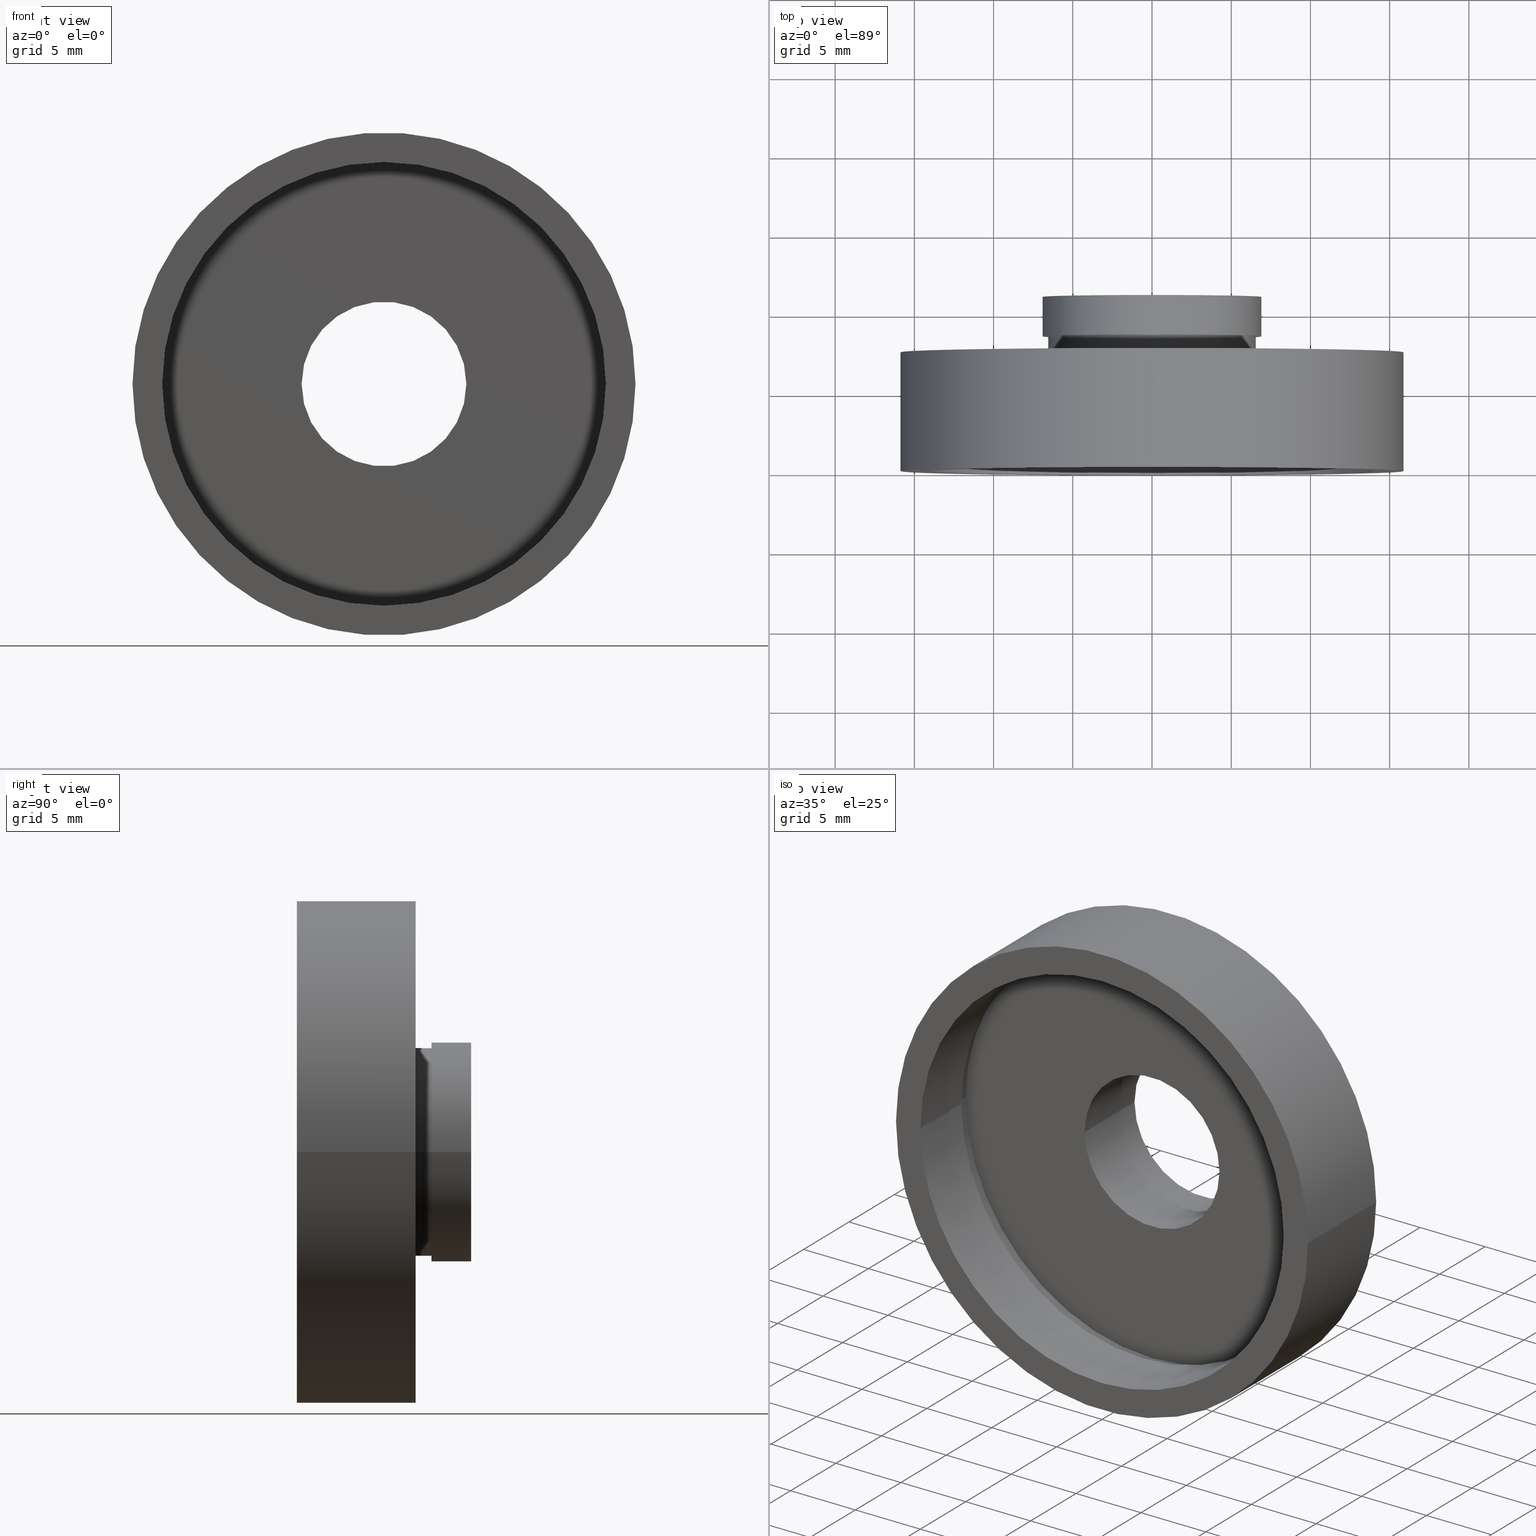
[diagram: canonical four-view strip — front | top / right | iso, engineering-drawing reading convention]
A machine part, canonical four-view strip (front | top / right | iso — engineering-drawing reading convention). The complete STEP part file that produces these views, byte-faithful:
ISO-10303-21;
HEADER;
FILE_DESCRIPTION (( 'STEP AP214' ),
    '1' );
FILE_NAME ('5041130.STEP',
    '2019-10-10T01:48:34',
    ( '' ),
    ( '' ),
    'SwSTEP 2.0',
    'SolidWorks 2016',
    '' );
FILE_SCHEMA (( 'AUTOMOTIVE_DESIGN' ));
ENDSEC;

DATA;
#1 = SURFACE_SIDE_STYLE ('',( #423 ) ) ;
#2 = DIRECTION ( 'NONE',  ( -1.000000000000000000, -1.668003342285391300E-016, 0.0000000000000000000 ) ) ;
#3 = CIRCLE ( 'NONE', #43, 6.900000000000000400 ) ;
#4 = CARTESIAN_POINT ( 'NONE',  ( 7.208293393765501500E-016, 10.99999999999999600, 0.0000000000000000000 ) ) ;
#5 = PRESENTATION_LAYER_ASSIGNMENT (  '', '', ( #562 ) ) ;
#6 = VECTOR ( 'NONE', #243, 1000.000000000000000 ) ;
#7 = ORIENTED_EDGE ( 'NONE', *, *, #348, .F. ) ;
#8 = CARTESIAN_POINT ( 'NONE',  ( 0.0000000000000000000, 16.88601823708207700, 0.0000000000000000000 ) ) ;
#9 = DIRECTION ( 'NONE',  ( -1.224646799147351000E-016, 1.000000000000000000, -0.0000000000000000000 ) ) ;
#10 = EDGE_LOOP ( 'NONE', ( #7, #543, #183, #410 ) ) ;
#11 = MECHANICAL_DESIGN_GEOMETRIC_PRESENTATION_REPRESENTATION (  '', ( #420 ), #207 ) ;
#12 = CARTESIAN_POINT ( 'NONE',  ( 14.35000000000000100, 5.500000000000000000, 1.757368156776452000E-015 ) ) ;
#13 = CYLINDRICAL_SURFACE ( 'NONE', #132, 14.35000000000000000 ) ;
#14 = COLOUR_RGB ( '',1.000000000000000000, 1.000000000000000000, 1.000000000000000000 ) ;
#15 = ORIENTED_EDGE ( 'NONE', *, *, #315, .T. ) ;
#16 = CARTESIAN_POINT ( 'NONE',  ( -5.200000000000000200, 11.00000000000000000, 0.0000000000000000000 ) ) ;
#17 = EDGE_CURVE ( 'NONE', #591, #440, #415, .T. ) ;
#18 = PRODUCT_DEFINITION ( 'δ֪', '', #465, #283 ) ;
#19 = CARTESIAN_POINT ( 'NONE',  ( 0.0000000000000000000, 16.88601823708207700, 0.0000000000000000000 ) ) ;
#20 = CIRCLE ( 'NONE', #515, 14.35000000000000000 ) ;
#21 = DIRECTION ( 'NONE',  ( -1.224646799147351000E-016, 1.000000000000000000, -0.0000000000000000000 ) ) ;
#22 = DIRECTION ( 'NONE',  ( -1.224646799147351000E-016, 1.000000000000000000, -0.0000000000000000000 ) ) ;
#23 = DIRECTION ( 'NONE',  ( -1.000000000000000000, -1.224646799147350700E-016, 0.0000000000000000000 ) ) ;
#24 = DIRECTION ( 'NONE',  ( 1.224646799147351000E-016, -1.000000000000000000, 0.0000000000000000000 ) ) ;
#25 = EDGE_CURVE ( 'NONE', #208, #256, #287, .T. ) ;
#26 = ORIENTED_EDGE ( 'NONE', *, *, #322, .T. ) ;
#27 = EDGE_LOOP ( 'NONE', ( #603, #48 ) ) ;
#28 = DIRECTION ( 'NONE',  ( -1.000000000000000000, -1.668003342285391300E-016, 0.0000000000000000000 ) ) ;
#29 = DIRECTION ( 'NONE',  ( -1.000000000000000000, -1.208866533781747200E-016, 0.0000000000000000000 ) ) ;
#30 = ADVANCED_FACE ( 'NONE', ( #301 ), #120, .F. ) ;
#31 = FACE_OUTER_BOUND ( 'NONE', #416, .T. ) ;
#32 = UNCERTAINTY_MEASURE_WITH_UNIT (LENGTH_MEASURE( 1.000000000000000100E-005 ), #52, 'distance_accuracy_value', 'NONE');
#33 =( GEOMETRIC_REPRESENTATION_CONTEXT ( 3 ) GLOBAL_UNCERTAINTY_ASSIGNED_CONTEXT ( ( #376 ) ) GLOBAL_UNIT_ASSIGNED_CONTEXT ( ( #143, #194, #587 ) ) REPRESENTATION_CONTEXT ( 'NONE', 'WORKASPACE' ) );
#34 = ORIENTED_EDGE ( 'NONE', *, *, #545, .T. ) ;
#35 = CARTESIAN_POINT ( 'NONE',  ( 15.87500000000000000, 16.88601823708208000, 1.944126793646423200E-015 ) ) ;
#36 =( LENGTH_UNIT ( ) NAMED_UNIT ( * ) SI_UNIT ( .MILLI., .METRE. ) );
#37 =( NAMED_UNIT ( * ) PLANE_ANGLE_UNIT ( ) SI_UNIT ( $, .RADIAN. ) );
#38 = EDGE_LOOP ( 'NONE', ( #249, #512 ) ) ;
#39 = MANIFOLD_SOLID_BREP ( '��ת1', #616 ) ;
#40 = PRESENTATION_STYLE_ASSIGNMENT (( #300 ) ) ;
#41 = DIRECTION ( 'NONE',  ( -1.000000000000000000, -1.208866533781747200E-016, 0.0000000000000000000 ) ) ;
#42 = STYLED_ITEM ( 'NONE', ( #333 ), #39 ) ;
#43 = AXIS2_PLACEMENT_3D ( 'NONE', #505, #215, #160 ) ;
#44 = CYLINDRICAL_SURFACE ( 'NONE', #229, 6.549999999999998900 ) ;
#45 = VECTOR ( 'NONE', #124, 1000.000000000000000 ) ;
#46 = DIRECTION ( 'NONE',  ( -1.000000000000000000, -2.185478394931410600E-016, 0.0000000000000000000 ) ) ;
#47 = CARTESIAN_POINT ( 'NONE',  ( 0.0000000000000000000, 16.88601823708207700, 0.0000000000000000000 ) ) ;
#48 = ORIENTED_EDGE ( 'NONE', *, *, #167, .T. ) ;
#49 = FILL_AREA_STYLE_COLOUR ( '', #485 ) ;
#50 = FILL_AREA_STYLE ('',( #576 ) ) ;
#51 = CIRCLE ( 'NONE', #312, 6.549999999999999800 ) ;
#52 =( LENGTH_UNIT ( ) NAMED_UNIT ( * ) SI_UNIT ( .MILLI., .METRE. ) );
#53 = EDGE_LOOP ( 'NONE', ( #105, #65 ) ) ;
#54 =( NAMED_UNIT ( * ) SI_UNIT ( $, .STERADIAN. ) SOLID_ANGLE_UNIT ( ) );
#55 = CARTESIAN_POINT ( 'NONE',  ( -14.34999999999999800, 5.499999999999996400, 0.0000000000000000000 ) ) ;
#56 = VERTEX_POINT ( 'NONE', #145 ) ;
#57 = EDGE_CURVE ( 'NONE', #506, #360, #217, .T. ) ;
#58 = FILL_AREA_STYLE ('',( #447 ) ) ;
#59 = APPLICATION_CONTEXT ( 'automotive_design' ) ;
#60 = FACE_OUTER_BOUND ( 'NONE', #10, .T. ) ;
#61 = PRESENTATION_STYLE_ASSIGNMENT (( #69 ) ) ;
#62 = FACE_OUTER_BOUND ( 'NONE', #232, .T. ) ;
#63 = CARTESIAN_POINT ( 'NONE',  ( 0.0000000000000000000, 16.88601823708207700, 0.0000000000000000000 ) ) ;
#64 = AXIS2_PLACEMENT_3D ( 'NONE', #77, #223, #28 ) ;
#65 = ORIENTED_EDGE ( 'NONE', *, *, #579, .F. ) ;
#66 = VERTEX_POINT ( 'NONE', #544 ) ;
#67 = DIRECTION ( 'NONE',  ( -1.000000000000000000, -2.185478394931410600E-016, 0.0000000000000000000 ) ) ;
#68 = AXIS2_PLACEMENT_3D ( 'NONE', #397, #290, #578 ) ;
#69 = SURFACE_STYLE_USAGE ( .BOTH. , #114 ) ;
#70 = CIRCLE ( 'NONE', #162, 14.35000000000000000 ) ;
#71 = CIRCLE ( 'NONE', #225, 14.00000000000000000 ) ;
#72 = AXIS2_PLACEMENT_3D ( 'NONE', #19, #22, #596 ) ;
#73 = ORIENTED_EDGE ( 'NONE', *, *, #322, .F. ) ;
#74 = CARTESIAN_POINT ( 'NONE',  ( -13.99999999999999800, 4.499999999999997300, 0.0000000000000000000 ) ) ;
#75 = ORIENTED_EDGE ( 'NONE', *, *, #274, .F. ) ;
#76 = CARTESIAN_POINT ( 'NONE',  ( 6.549999999999998900, 16.88601823708207700, 8.021436534415162300E-016 ) ) ;
#77 = CARTESIAN_POINT ( 'NONE',  ( 1.394385078907592800E-015, 5.500000000000000000, 0.0000000000000000000 ) ) ;
#78 = ADVANCED_FACE ( 'NONE', ( #564 ), #191, .T. ) ;
#79 = VECTOR ( 'NONE', #373, 1000.000000000000000 ) ;
#80 = DIRECTION ( 'NONE',  ( -1.224646799147351000E-016, 1.000000000000000000, -0.0000000000000000000 ) ) ;
#81 =( GEOMETRIC_REPRESENTATION_CONTEXT ( 3 ) GLOBAL_UNCERTAINTY_ASSIGNED_CONTEXT ( ( #32 ) ) GLOBAL_UNIT_ASSIGNED_CONTEXT ( ( #52, #258, #253 ) ) REPRESENTATION_CONTEXT ( 'NONE', 'WORKASPACE' ) );
#82 = ORIENTED_EDGE ( 'NONE', *, *, #593, .T. ) ;
#83 = ADVANCED_FACE ( 'NONE', ( #254, #403 ), #446, .F. ) ;
#84 = AXIS2_PLACEMENT_3D ( 'NONE', #363, #509, #219 ) ;
#85 = DIRECTION ( 'NONE',  ( 1.224646799147351000E-016, -1.000000000000000000, 0.0000000000000000000 ) ) ;
#86 = SURFACE_STYLE_USAGE ( .BOTH. , #471 ) ;
#87 = DIRECTION ( 'NONE',  ( -1.224646799147351000E-016, 1.000000000000000000, -0.0000000000000000000 ) ) ;
#88 = LINE ( 'NONE', #316, #45 ) ;
#89 = VERTEX_POINT ( 'NONE', #297 ) ;
#90 = CARTESIAN_POINT ( 'NONE',  ( 0.0000000000000000000, 16.88601823708207700, 0.0000000000000000000 ) ) ;
#91 = AXIS2_PLACEMENT_3D ( 'NONE', #345, #391, #99 ) ;
#92 =( GEOMETRIC_REPRESENTATION_CONTEXT ( 3 ) GLOBAL_UNCERTAINTY_ASSIGNED_CONTEXT ( ( #443 ) ) GLOBAL_UNIT_ASSIGNED_CONTEXT ( ( #436, #486, #54 ) ) REPRESENTATION_CONTEXT ( 'NONE', 'WORKASPACE' ) );
#93 = SURFACE_SIDE_STYLE ('',( #298 ) ) ;
#94 = SURFACE_STYLE_FILL_AREA ( #212 ) ;
#95 = ORIENTED_EDGE ( 'NONE', *, *, #460, .F. ) ;
#96 = CARTESIAN_POINT ( 'NONE',  ( -15.87500000000000000, 7.499999999999996400, 0.0000000000000000000 ) ) ;
#97 = ORIENTED_EDGE ( 'NONE', *, *, #172, .F. ) ;
#98 = STYLED_ITEM ( 'NONE', ( #606 ), #467 ) ;
#99 = DIRECTION ( 'NONE',  ( -1.000000000000000000, -1.239088197126290800E-016, 0.0000000000000000000 ) ) ;
#100 = DIRECTION ( 'NONE',  ( -1.224646799147351000E-016, 1.000000000000000000, -0.0000000000000000000 ) ) ;
#101 = CARTESIAN_POINT ( 'NONE',  ( 14.00000000000000200, 1.714505518806291500E-015, 1.714505518806294600E-015 ) ) ;
#102 = PRESENTATION_LAYER_ASSIGNMENT (  '', '', ( #98 ) ) ;
#103 = LINE ( 'NONE', #76, #601 ) ;
#104 = DIRECTION ( 'NONE',  ( -1.000000000000000000, 0.0000000000000000000, 0.0000000000000000000 ) ) ;
#105 = ORIENTED_EDGE ( 'NONE', *, *, #234, .F. ) ;
#106 = ORIENTED_EDGE ( 'NONE', *, *, #214, .F. ) ;
#107 = EDGE_CURVE ( 'NONE', #440, #591, #270, .T. ) ;
#108 = ORIENTED_EDGE ( 'NONE', *, *, #482, .F. ) ;
#109 = DIRECTION ( 'NONE',  ( -1.224646799147351000E-016, 1.000000000000000000, 0.0000000000000000000 ) ) ;
#110 = DIRECTION ( 'NONE',  ( 0.0000000000000000000, 0.0000000000000000000, 1.000000000000000000 ) ) ;
#111 =( NAMED_UNIT ( * ) SI_UNIT ( $, .STERADIAN. ) SOLID_ANGLE_UNIT ( ) );
#112 = FACE_OUTER_BOUND ( 'NONE', #326, .T. ) ;
#113 = ORIENTED_EDGE ( 'NONE', *, *, #199, .F. ) ;
#114 = SURFACE_SIDE_STYLE ('',( #94 ) ) ;
#115 =( GEOMETRIC_REPRESENTATION_CONTEXT ( 3 ) GLOBAL_UNCERTAINTY_ASSIGNED_CONTEXT ( ( #131 ) ) GLOBAL_UNIT_ASSIGNED_CONTEXT ( ( #404, #155, #111 ) ) REPRESENTATION_CONTEXT ( 'NONE', 'WORKASPACE' ) );
#116 = MECHANICAL_DESIGN_GEOMETRIC_PRESENTATION_REPRESENTATION (  '', ( #562 ), #33 ) ;
#117 = DIRECTION ( 'NONE',  ( -1.224646799147351000E-016, 1.000000000000000000, -0.0000000000000000000 ) ) ;
#118 = DIRECTION ( 'NONE',  ( -1.000000000000000000, -1.092739197465705300E-016, 0.0000000000000000000 ) ) ;
#119 = FACE_BOUND ( 'NONE', #53, .T. ) ;
#120 = CYLINDRICAL_SURFACE ( 'NONE', #572, 14.35000000000000000 ) ;
#121 =( LENGTH_UNIT ( ) NAMED_UNIT ( * ) SI_UNIT ( .MILLI., .METRE. ) );
#122 = VERTEX_POINT ( 'NONE', #55 ) ;
#123 = ORIENTED_EDGE ( 'NONE', *, *, #602, .F. ) ;
#124 = DIRECTION ( 'NONE',  ( -1.224646799147351000E-016, 1.000000000000000000, -0.0000000000000000000 ) ) ;
#125 = UNCERTAINTY_MEASURE_WITH_UNIT (LENGTH_MEASURE( 1.000000000000000100E-005 ), #121, 'distance_accuracy_value', 'NONE');
#126 = MECHANICAL_DESIGN_GEOMETRIC_PRESENTATION_REPRESENTATION (  '', ( #42 ), #81 ) ;
#127 = CYLINDRICAL_SURFACE ( 'NONE', #421, 15.87500000000000000 ) ;
#128 = AXIS2_PLACEMENT_3D ( 'NONE', #305, #599, #409 ) ;
#129 = VERTEX_POINT ( 'NONE', #12 ) ;
#130 = DIRECTION ( 'NONE',  ( -1.224646799147351000E-016, 1.000000000000000000, -0.0000000000000000000 ) ) ;
#131 = UNCERTAINTY_MEASURE_WITH_UNIT (LENGTH_MEASURE( 1.000000000000000100E-005 ), #404, 'distance_accuracy_value', 'NONE');
#132 = AXIS2_PLACEMENT_3D ( 'NONE', #90, #138, #428 ) ;
#133 = SURFACE_STYLE_FILL_AREA ( #278 ) ;
#134 = PRESENTATION_LAYER_ASSIGNMENT (  '', '', ( #535 ) ) ;
#135 = ORIENTED_EDGE ( 'NONE', *, *, #368, .F. ) ;
#136 = DIRECTION ( 'NONE',  ( -1.000000000000000000, 0.0000000000000000000, 0.0000000000000000000 ) ) ;
#137 = EDGE_CURVE ( 'NONE', #360, #387, #141, .T. ) ;
#138 = DIRECTION ( 'NONE',  ( -1.224646799147351000E-016, 1.000000000000000000, -0.0000000000000000000 ) ) ;
#139 = DIRECTION ( 'NONE',  ( -1.224646799147351000E-016, 1.000000000000000000, -0.0000000000000000000 ) ) ;
#140 = FACE_OUTER_BOUND ( 'NONE', #200, .T. ) ;
#141 = CIRCLE ( 'NONE', #474, 6.900000000000001200 ) ;
#142 = DIRECTION ( 'NONE',  ( -1.224646799147351000E-016, 1.000000000000000000, -0.0000000000000000000 ) ) ;
#143 =( LENGTH_UNIT ( ) NAMED_UNIT ( * ) SI_UNIT ( .MILLI., .METRE. ) );
#144 = AXIS2_PLACEMENT_3D ( 'NONE', #353, #198, #494 ) ;
#145 = CARTESIAN_POINT ( 'NONE',  ( -13.99999999999999800, -1.714505518806291500E-015, 0.0000000000000000000 ) ) ;
#146 = AXIS2_PLACEMENT_3D ( 'NONE', #518, #466, #175 ) ;
#147 = SURFACE_STYLE_USAGE ( .BOTH. , #93 ) ;
#148 = VECTOR ( 'NONE', #130, 1000.000000000000000 ) ;
#149 = ORIENTED_EDGE ( 'NONE', *, *, #619, .F. ) ;
#150 = ORIENTED_EDGE ( 'NONE', *, *, #602, .T. ) ;
#151 = DIRECTION ( 'NONE',  ( -1.000000000000000000, 0.0000000000000000000, 0.0000000000000000000 ) ) ;
#152 = SURFACE_SIDE_STYLE ('',( #262 ) ) ;
#153 = CYLINDRICAL_SURFACE ( 'NONE', #501, 15.87500000000000000 ) ;
#154 = PRODUCT_CONTEXT ( 'NONE', #59, 'mechanical' ) ;
#155 =( NAMED_UNIT ( * ) PLANE_ANGLE_UNIT ( ) SI_UNIT ( $, .RADIAN. ) );
#156 = EDGE_CURVE ( 'NONE', #344, #622, #439, .T. ) ;
#157 = ORIENTED_EDGE ( 'NONE', *, *, #444, .T. ) ;
#158 = PRESENTATION_LAYER_ASSIGNMENT (  '', '', ( #291 ) ) ;
#159 = DIRECTION ( 'NONE',  ( -1.000000000000000000, -1.239088197126290800E-016, 0.0000000000000000000 ) ) ;
#160 = DIRECTION ( 'NONE',  ( -1.000000000000000000, 0.0000000000000000000, 0.0000000000000000000 ) ) ;
#161 =( NAMED_UNIT ( * ) PLANE_ANGLE_UNIT ( ) SI_UNIT ( $, .RADIAN. ) );
#162 = AXIS2_PLACEMENT_3D ( 'NONE', #388, #196, #41 ) ;
#163 = FACE_OUTER_BOUND ( 'NONE', #582, .T. ) ;
#164 = VERTEX_POINT ( 'NONE', #101 ) ;
#165 = AXIS2_PLACEMENT_3D ( 'NONE', #226, #85, #422 ) ;
#166 = CARTESIAN_POINT ( 'NONE',  ( 1.026991039163387500E-015, 8.500000000000000000, 0.0000000000000000000 ) ) ;
#167 = EDGE_CURVE ( 'NONE', #66, #520, #526, .T. ) ;
#168 = VECTOR ( 'NONE', #479, 1000.000000000000000 ) ;
#169 = CARTESIAN_POINT ( 'NONE',  ( 1.394385078907593000E-015, 5.499999999999998200, 0.0000000000000000000 ) ) ;
#170 = ORIENTED_EDGE ( 'NONE', *, *, #57, .F. ) ;
#171 = CARTESIAN_POINT ( 'NONE',  ( 6.550000000000000700, 7.499999999999999100, 0.0000000000000000000 ) ) ;
#172 = EDGE_CURVE ( 'NONE', #263, #250, #393, .T. ) ;
#173 = LINE ( 'NONE', #605, #246 ) ;
#174 = AXIS2_PLACEMENT_3D ( 'NONE', #573, #330, #386 ) ;
#175 = DIRECTION ( 'NONE',  ( -1.000000000000000000, -1.224646799147351000E-016, 0.0000000000000000000 ) ) ;
#176 = ADVANCED_FACE ( 'NONE', ( #62 ), #317, .F. ) ;
#177 = EDGE_LOOP ( 'NONE', ( #319, #536, #604, #211 ) ) ;
#178 = EDGE_CURVE ( 'NONE', #381, #426, #295, .T. ) ;
#179 = ADVANCED_FACE ( 'NONE', ( #457, #163 ), #455, .F. ) ;
#180 = DIRECTION ( 'NONE',  ( -1.224646799147351000E-016, 1.000000000000000000, -0.0000000000000000000 ) ) ;
#181 = FACE_OUTER_BOUND ( 'NONE', #177, .T. ) ;
#182 = CARTESIAN_POINT ( 'NONE',  ( 15.87500000000000000, -2.166671187435640300E-031, 0.0000000000000000000 ) ) ;
#183 = ORIENTED_EDGE ( 'NONE', *, *, #279, .T. ) ;
#184 = DIRECTION ( 'NONE',  ( -1.000000000000000000, -2.417733067563494300E-016, 0.0000000000000000000 ) ) ;
#185 = EDGE_CURVE ( 'NONE', #89, #367, #189, .T. ) ;
#186 = MECHANICAL_DESIGN_GEOMETRIC_PRESENTATION_REPRESENTATION (  '', ( #535 ), #358 ) ;
#187 = DIRECTION ( 'NONE',  ( -1.000000000000000000, -1.324216393875425300E-016, 0.0000000000000000000 ) ) ;
#188 = FACE_OUTER_BOUND ( 'NONE', #289, .T. ) ;
#189 = CIRCLE ( 'NONE', #470, 6.549999999999998900 ) ;
#190 = SURFACE_STYLE_USAGE ( .BOTH. , #1 ) ;
#191 = CYLINDRICAL_SURFACE ( 'NONE', #144, 6.900000000000001200 ) ;
#192 = ORIENTED_EDGE ( 'NONE', *, *, #334, .F. ) ;
#193 = ORIENTED_EDGE ( 'NONE', *, *, #274, .T. ) ;
#194 =( NAMED_UNIT ( * ) PLANE_ANGLE_UNIT ( ) SI_UNIT ( $, .RADIAN. ) );
#195 =( GEOMETRIC_REPRESENTATION_CONTEXT ( 3 ) GLOBAL_UNCERTAINTY_ASSIGNED_CONTEXT ( ( #552 ) ) GLOBAL_UNIT_ASSIGNED_CONTEXT ( ( #36, #37, #522 ) ) REPRESENTATION_CONTEXT ( 'NONE', 'WORKASPACE' ) );
#196 = DIRECTION ( 'NONE',  ( -1.224646799147351000E-016, 1.000000000000000000, -0.0000000000000000000 ) ) ;
#197 = FACE_OUTER_BOUND ( 'NONE', #418, .T. ) ;
#198 = DIRECTION ( 'NONE',  ( -1.224646799147351000E-016, 1.000000000000000000, -0.0000000000000000000 ) ) ;
#199 = EDGE_CURVE ( 'NONE', #506, #304, #3, .T. ) ;
#200 = EDGE_LOOP ( 'NONE', ( #575, #597 ) ) ;
#201 = EDGE_LOOP ( 'NONE', ( #277, #113 ) ) ;
#202 = DIRECTION ( 'NONE',  ( -1.224646799147351000E-016, 1.000000000000000000, -0.0000000000000000000 ) ) ;
#203 = PRESENTATION_STYLE_ASSIGNMENT (( #147 ) ) ;
#204 = DIRECTION ( 'NONE',  ( 1.000000000000000000, 0.0000000000000000000, 0.0000000000000000000 ) ) ;
#205 = LINE ( 'NONE', #35, #580 ) ;
#206 = DIRECTION ( 'NONE',  ( -1.224646799147351000E-016, 1.000000000000000000, -0.0000000000000000000 ) ) ;
#207 =( GEOMETRIC_REPRESENTATION_CONTEXT ( 3 ) GLOBAL_UNCERTAINTY_ASSIGNED_CONTEXT ( ( #125 ) ) GLOBAL_UNIT_ASSIGNED_CONTEXT ( ( #121, #161, #362 ) ) REPRESENTATION_CONTEXT ( 'NONE', 'WORKASPACE' ) );
#208 = VERTEX_POINT ( 'NONE', #314 ) ;
#209 = APPLICATION_CONTEXT ( 'automotive_design' ) ;
#210 = AXIS2_PLACEMENT_3D ( 'NONE', #169, #323, #370 ) ;
#211 = ORIENTED_EDGE ( 'NONE', *, *, #247, .F. ) ;
#212 = FILL_AREA_STYLE ('',( #413 ) ) ;
#213 = DIRECTION ( 'NONE',  ( -1.224646799147351000E-016, 1.000000000000000000, -0.0000000000000000000 ) ) ;
#214 = EDGE_CURVE ( 'NONE', #367, #89, #532, .T. ) ;
#215 = DIRECTION ( 'NONE',  ( -1.224646799147351000E-016, 1.000000000000000000, -0.0000000000000000000 ) ) ;
#216 = LINE ( 'NONE', #469, #331 ) ;
#217 = LINE ( 'NONE', #489, #590 ) ;
#218 = VERTEX_POINT ( 'NONE', #259 ) ;
#219 = DIRECTION ( 'NONE',  ( -1.000000000000000000, 0.0000000000000000000, 0.0000000000000000000 ) ) ;
#220 = ORIENTED_EDGE ( 'NONE', *, *, #432, .T. ) ;
#221 = MECHANICAL_DESIGN_GEOMETRIC_PRESENTATION_REPRESENTATION (  '', ( #291 ), #407 ) ;
#222 = ORIENTED_EDGE ( 'NONE', *, *, #450, .T. ) ;
#223 = DIRECTION ( 'NONE',  ( -1.224646799147351000E-016, 1.000000000000000000, -0.0000000000000000000 ) ) ;
#224 = ADVANCED_FACE ( 'NONE', ( #181 ), #127, .T. ) ;
#225 = AXIS2_PLACEMENT_3D ( 'NONE', #519, #384, #377 ) ;
#226 = CARTESIAN_POINT ( 'NONE',  ( 5.200000000000001100, 11.00000000000000000, 0.0000000000000000000 ) ) ;
#227 = FILL_AREA_STYLE_COLOUR ( '', #620 ) ;
#228 = FACE_BOUND ( 'NONE', #352, .T. ) ;
#229 = AXIS2_PLACEMENT_3D ( 'NONE', #524, #142, #329 ) ;
#230 = VERTEX_POINT ( 'NONE', #547 ) ;
#231 =( NAMED_UNIT ( * ) PLANE_ANGLE_UNIT ( ) SI_UNIT ( $, .RADIAN. ) );
#232 = EDGE_LOOP ( 'NONE', ( #149, #335, #328, #584 ) ) ;
#233 = DIRECTION ( 'NONE',  ( -1.224646799147351000E-016, 1.000000000000000000, -0.0000000000000000000 ) ) ;
#234 = EDGE_CURVE ( 'NONE', #256, #230, #495, .T. ) ;
#235 = PLANE ( 'NONE',  #600 ) ;
#236 = DIRECTION ( 'NONE',  ( -1.224646799147351000E-016, 1.000000000000000000, -0.0000000000000000000 ) ) ;
#237 = CIRCLE ( 'NONE', #568, 15.87499999999999600 ) ;
#238 = EDGE_LOOP ( 'NONE', ( #170, #371, #527, #434 ) ) ;
#239 = FILL_AREA_STYLE_COLOUR ( '', #349 ) ;
#240 = EDGE_LOOP ( 'NONE', ( #496, #468, #382, #585 ) ) ;
#241 = CARTESIAN_POINT ( 'NONE',  ( 15.87500000000000000, -1.525320158307194900E-015, 1.944126793646423200E-015 ) ) ;
#242 = AXIS2_PLACEMENT_3D ( 'NONE', #498, #213, #366 ) ;
#243 = DIRECTION ( 'NONE',  ( -1.224646799147351000E-016, 1.000000000000000000, -0.0000000000000000000 ) ) ;
#244 = AXIS2_PLACEMENT_3D ( 'NONE', #171, #24, #419 ) ;
#245 = CARTESIAN_POINT ( 'NONE',  ( 7.208293393765501500E-016, 10.99999999999999600, 0.0000000000000000000 ) ) ;
#246 = VECTOR ( 'NONE', #425, 1000.000000000000000 ) ;
#247 = EDGE_CURVE ( 'NONE', #344, #520, #88, .T. ) ;
#248 = DIRECTION ( 'NONE',  ( -1.224646799147351000E-016, 1.000000000000000000, -0.0000000000000000000 ) ) ;
#249 = ORIENTED_EDGE ( 'NONE', *, *, #107, .F. ) ;
#250 = VERTEX_POINT ( 'NONE', #359 ) ;
#251 =( NAMED_UNIT ( * ) PLANE_ANGLE_UNIT ( ) SI_UNIT ( $, .RADIAN. ) );
#252 = SURFACE_STYLE_USAGE ( .BOTH. , #152 ) ;
#253 =( NAMED_UNIT ( * ) SI_UNIT ( $, .STERADIAN. ) SOLID_ANGLE_UNIT ( ) );
#254 = FACE_OUTER_BOUND ( 'NONE', #201, .T. ) ;
#255 = AXIS2_PLACEMENT_3D ( 'NONE', #538, #398, #541 ) ;
#256 = VERTEX_POINT ( 'NONE', #16 ) ;
#257 = SURFACE_SIDE_STYLE ('',( #478 ) ) ;
#258 =( NAMED_UNIT ( * ) PLANE_ANGLE_UNIT ( ) SI_UNIT ( $, .RADIAN. ) );
#259 = CARTESIAN_POINT ( 'NONE',  ( 5.200000000000001100, 5.500000000000000900, 6.368163355566236400E-016 ) ) ;
#260 = AXIS2_PLACEMENT_3D ( 'NONE', #442, #586, #2 ) ;
#261 = VECTOR ( 'NONE', #236, 1000.000000000000000 ) ;
#262 = SURFACE_STYLE_FILL_AREA ( #58 ) ;
#263 = VERTEX_POINT ( 'NONE', #374 ) ;
#264 = EDGE_LOOP ( 'NONE', ( #192, #75, #303, #565 ) ) ;
#265 = DIRECTION ( 'NONE',  ( -1.224646799147351000E-016, 1.000000000000000000, -0.0000000000000000000 ) ) ;
#266 = DIRECTION ( 'NONE',  ( -1.000000000000000000, -1.208866533781747200E-016, 0.0000000000000000000 ) ) ;
#267 = AXIS2_PLACEMENT_3D ( 'NONE', #396, #491, #159 ) ;
#268 = FACE_OUTER_BOUND ( 'NONE', #240, .T. ) ;
#269 = CARTESIAN_POINT ( 'NONE',  ( -6.549999999999998000, 8.500000000000000000, 0.0000000000000000000 ) ) ;
#270 = CIRCLE ( 'NONE', #267, 14.00000000000000000 ) ;
#271 = ORIENTED_EDGE ( 'NONE', *, *, #432, .F. ) ;
#272 = PLANE ( 'NONE',  #244 ) ;
#273 = CARTESIAN_POINT ( 'NONE',  ( 6.550000000000000700, 7.500000000000000900, 8.021436534415164200E-016 ) ) ;
#274 = EDGE_CURVE ( 'NONE', #208, #218, #549, .T. ) ;
#275 = AXIS2_PLACEMENT_3D ( 'NONE', #617, #233, #136 ) ;
#276 = FILL_AREA_STYLE_COLOUR ( '', #357 ) ;
#277 = ORIENTED_EDGE ( 'NONE', *, *, #507, .F. ) ;
#278 = FILL_AREA_STYLE ('',( #227 ) ) ;
#279 = EDGE_CURVE ( 'NONE', #426, #367, #503, .T. ) ;
#280 = PRODUCT ( '5041130', '5041130', '', ( #154 ) ) ;
#281 = CARTESIAN_POINT ( 'NONE',  ( 1.026991039163387500E-015, 8.500000000000000000, 0.0000000000000000000 ) ) ;
#282 = ADVANCED_FACE ( 'NONE', ( #487, #378 ), #272, .F. ) ;
#283 = PRODUCT_DEFINITION_CONTEXT ( 'detailed design', #209, 'design' ) ;
#284 = DIRECTION ( 'NONE',  ( -1.000000000000000000, -1.224646799147351000E-016, 0.0000000000000000000 ) ) ;
#285 = PRESENTATION_STYLE_ASSIGNMENT (( #190 ) ) ;
#286 = ADVANCED_FACE ( 'NONE', ( #119, #31 ), #414, .F. ) ;
#287 = LINE ( 'NONE', #481, #6 ) ;
#288 = CARTESIAN_POINT ( 'NONE',  ( -6.900000000000001200, 16.88601823708207700, 0.0000000000000000000 ) ) ;
#289 = EDGE_LOOP ( 'NONE', ( #271, #135, #34, #26 ) ) ;
#290 = DIRECTION ( 'NONE',  ( -1.224646799147351000E-016, 1.000000000000000000, -0.0000000000000000000 ) ) ;
#291 = STYLED_ITEM ( 'NONE', ( #40 ), #424 ) ;
#292 =( LENGTH_UNIT ( ) NAMED_UNIT ( * ) SI_UNIT ( .MILLI., .METRE. ) );
#293 = LINE ( 'NONE', #288, #168 ) ;
#294 = FILL_AREA_STYLE ('',( #488 ) ) ;
#295 = CIRCLE ( 'NONE', #242, 6.549999999999999800 ) ;
#296 = SURFACE_STYLE_FILL_AREA ( #50 ) ;
#297 = CARTESIAN_POINT ( 'NONE',  ( 6.549999999999999800, 8.500000000000000000, 8.021436534415162300E-016 ) ) ;
#298 = SURFACE_STYLE_FILL_AREA ( #537 ) ;
#299 = EDGE_CURVE ( 'NONE', #520, #66, #365, .T. ) ;
#300 = SURFACE_STYLE_USAGE ( .BOTH. , #257 ) ;
#301 = FACE_OUTER_BOUND ( 'NONE', #566, .T. ) ;
#302 = UNCERTAINTY_MEASURE_WITH_UNIT (LENGTH_MEASURE( 1.000000000000000100E-005 ), #292, 'distance_accuracy_value', 'NONE');
#303 = ORIENTED_EDGE ( 'NONE', *, *, #25, .T. ) ;
#304 = VERTEX_POINT ( 'NONE', #461 ) ;
#305 = CARTESIAN_POINT ( 'NONE',  ( 14.00000000000000200, 4.500000000000000000, 0.0000000000000000000 ) ) ;
#306 = AXIS2_PLACEMENT_3D ( 'NONE', #429, #87, #284 ) ;
#307 = FACE_OUTER_BOUND ( 'NONE', #264, .T. ) ;
#308 = DIRECTION ( 'NONE',  ( -1.000000000000000000, 0.0000000000000000000, 0.0000000000000000000 ) ) ;
#309 = COLOUR_RGB ( '',1.000000000000000000, 1.000000000000000000, 1.000000000000000000 ) ;
#310 = COLOUR_RGB ( '',1.000000000000000000, 1.000000000000000000, 1.000000000000000000 ) ;
#311 = ORIENTED_EDGE ( 'NONE', *, *, #368, .T. ) ;
#312 = AXIS2_PLACEMENT_3D ( 'NONE', #350, #445, #187 ) ;
#313 = CARTESIAN_POINT ( 'NONE',  ( 1.026991039163387500E-015, 8.500000000000000000, 0.0000000000000000000 ) ) ;
#314 = CARTESIAN_POINT ( 'NONE',  ( -5.199999999999998400, 5.499999999999999100, 0.0000000000000000000 ) ) ;
#315 = EDGE_CURVE ( 'NONE', #622, #344, #237, .T. ) ;
#316 = CARTESIAN_POINT ( 'NONE',  ( -15.87500000000000000, 16.88601823708207300, 0.0000000000000000000 ) ) ;
#317 = CYLINDRICAL_SURFACE ( 'NONE', #72, 5.200000000000000200 ) ;
#318 = DIRECTION ( 'NONE',  ( -1.224646799147351000E-016, 1.000000000000000000, -0.0000000000000000000 ) ) ;
#319 = ORIENTED_EDGE ( 'NONE', *, *, #156, .T. ) ;
#320 = CARTESIAN_POINT ( 'NONE',  ( 0.0000000000000000000, 16.88601823708207700, 0.0000000000000000000 ) ) ;
#321 = DIRECTION ( 'NONE',  ( -1.000000000000000000, -1.092739197465705300E-016, 0.0000000000000000000 ) ) ;
#322 = EDGE_CURVE ( 'NONE', #122, #129, #406, .T. ) ;
#323 = DIRECTION ( 'NONE',  ( -1.224646799147351000E-016, 1.000000000000000000, -0.0000000000000000000 ) ) ;
#324 = FACE_BOUND ( 'NONE', #448, .T. ) ;
#325 = ADVANCED_FACE ( 'NONE', ( #112, #228 ), #510, .F. ) ;
#326 = EDGE_LOOP ( 'NONE', ( #73, #123 ) ) ;
#327 = CARTESIAN_POINT ( 'NONE',  ( -6.549999999999998900, 7.499999999999999100, 0.0000000000000000000 ) ) ;
#328 = ORIENTED_EDGE ( 'NONE', *, *, #579, .T. ) ;
#329 = DIRECTION ( 'NONE',  ( -1.000000000000000000, 0.0000000000000000000, 0.0000000000000000000 ) ) ;
#330 = DIRECTION ( 'NONE',  ( -1.224646799147351000E-016, 1.000000000000000000, -0.0000000000000000000 ) ) ;
#331 = VECTOR ( 'NONE', #567, 1000.000000000000000 ) ;
#332 = DIRECTION ( 'NONE',  ( -1.000000000000000000, 0.0000000000000000000, 0.0000000000000000000 ) ) ;
#333 = PRESENTATION_STYLE_ASSIGNMENT (( #542 ) ) ;
#334 = EDGE_CURVE ( 'NONE', #218, #230, #341, .T. ) ;
#335 = ORIENTED_EDGE ( 'NONE', *, *, #334, .T. ) ;
#336 = SHAPE_DEFINITION_REPRESENTATION ( #493, #424 ) ;
#337 = SURFACE_STYLE_USAGE ( .BOTH. , #612 ) ;
#338 = CARTESIAN_POINT ( 'NONE',  ( 14.00000000000000200, 4.500000000000000900, 1.714505518806294600E-015 ) ) ;
#339 = CYLINDRICAL_SURFACE ( 'NONE', #174, 6.900000000000001200 ) ;
#340 = AXIS2_PLACEMENT_3D ( 'NONE', #531, #248, #390 ) ;
#341 = LINE ( 'NONE', #560, #79 ) ;
#342 = ORIENTED_EDGE ( 'NONE', *, *, #247, .T. ) ;
#343 = ORIENTED_EDGE ( 'NONE', *, *, #167, .F. ) ;
#344 = VERTEX_POINT ( 'NONE', #369 ) ;
#345 = CARTESIAN_POINT ( 'NONE',  ( 1.516849758822328100E-015, 4.499999999999999100, 0.0000000000000000000 ) ) ;
#346 = AXIS2_PLACEMENT_3D ( 'NONE', #245, #624, #151 ) ;
#347 = DIRECTION ( 'NONE',  ( -1.000000000000000000, 0.0000000000000000000, 0.0000000000000000000 ) ) ;
#348 = EDGE_CURVE ( 'NONE', #381, #89, #103, .T. ) ;
#349 = COLOUR_RGB ( '',1.000000000000000000, 1.000000000000000000, 1.000000000000000000 ) ;
#350 = CARTESIAN_POINT ( 'NONE',  ( 1.149455719078122500E-015, 7.500000000000000000, 0.0000000000000000000 ) ) ;
#351 = SURFACE_STYLE_FILL_AREA ( #430 ) ;
#352 = EDGE_LOOP ( 'NONE', ( #193, #380 ) ) ;
#353 = CARTESIAN_POINT ( 'NONE',  ( 0.0000000000000000000, 16.88601823708207700, 0.0000000000000000000 ) ) ;
#354 = ORIENTED_EDGE ( 'NONE', *, *, #214, .T. ) ;
#355 = SURFACE_SIDE_STYLE ('',( #296 ) ) ;
#356 = STYLED_ITEM ( 'NONE', ( #534 ), #78 ) ;
#357 = COLOUR_RGB ( '',1.000000000000000000, 1.000000000000000000, 1.000000000000000000 ) ;
#358 =( GEOMETRIC_REPRESENTATION_CONTEXT ( 3 ) GLOBAL_UNCERTAINTY_ASSIGNED_CONTEXT ( ( #302 ) ) GLOBAL_UNIT_ASSIGNED_CONTEXT ( ( #292, #583, #533 ) ) REPRESENTATION_CONTEXT ( 'NONE', 'WORKASPACE' ) );
#359 = CARTESIAN_POINT ( 'NONE',  ( -14.34999999999999800, 4.499999999999997300, 0.0000000000000000000 ) ) ;
#360 = VERTEX_POINT ( 'NONE', #610 ) ;
#361 = ORIENTED_EDGE ( 'NONE', *, *, #444, .F. ) ;
#362 =( NAMED_UNIT ( * ) SI_UNIT ( $, .STERADIAN. ) SOLID_ANGLE_UNIT ( ) );
#363 = CARTESIAN_POINT ( 'NONE',  ( 7.208293393765498600E-016, 11.00000000000000000, 0.0000000000000000000 ) ) ;
#364 = CYLINDRICAL_SURFACE ( 'NONE', #340, 14.00000000000000000 ) ;
#365 = CIRCLE ( 'NONE', #451, 15.87500000000000000 ) ;
#366 = DIRECTION ( 'NONE',  ( -1.000000000000000000, -1.324216393875425300E-016, 0.0000000000000000000 ) ) ;
#367 = VERTEX_POINT ( 'NONE', #269 ) ;
#368 = EDGE_CURVE ( 'NONE', #250, #263, #20, .T. ) ;
#369 = CARTESIAN_POINT ( 'NONE',  ( -15.87499999999999300, -5.413573745600033100E-015, 0.0000000000000000000 ) ) ;
#370 = DIRECTION ( 'NONE',  ( -1.000000000000000000, -1.208866533781747200E-016, 0.0000000000000000000 ) ) ;
#371 = ORIENTED_EDGE ( 'NONE', *, *, #199, .T. ) ;
#372 =( GEOMETRIC_REPRESENTATION_CONTEXT ( 3 ) GLOBAL_UNCERTAINTY_ASSIGNED_CONTEXT ( ( #623 ) ) GLOBAL_UNIT_ASSIGNED_CONTEXT ( ( #614, #231, #571 ) ) REPRESENTATION_CONTEXT ( 'NONE', 'WORKASPACE' ) );
#373 = DIRECTION ( 'NONE',  ( -1.224646799147351000E-016, 1.000000000000000000, -0.0000000000000000000 ) ) ;
#374 = CARTESIAN_POINT ( 'NONE',  ( 14.35000000000000100, 4.500000000000000900, 1.757368156776452000E-015 ) ) ;
#375 = MECHANICAL_DESIGN_GEOMETRIC_PRESENTATION_REPRESENTATION (  '', ( #441 ), #372 ) ;
#376 = UNCERTAINTY_MEASURE_WITH_UNIT (LENGTH_MEASURE( 1.000000000000000100E-005 ), #143, 'distance_accuracy_value', 'NONE');
#377 = DIRECTION ( 'NONE',  ( -1.000000000000000000, -1.224646799147351000E-016, 0.0000000000000000000 ) ) ;
#378 = FACE_OUTER_BOUND ( 'NONE', #27, .T. ) ;
#379 = MECHANICAL_DESIGN_GEOMETRIC_PRESENTATION_REPRESENTATION (  '', ( #356 ), #115 ) ;
#380 = ORIENTED_EDGE ( 'NONE', *, *, #619, .T. ) ;
#381 = VERTEX_POINT ( 'NONE', #273 ) ;
#382 = ORIENTED_EDGE ( 'NONE', *, *, #514, .T. ) ;
#383 = DIRECTION ( 'NONE',  ( -1.000000000000000000, 0.0000000000000000000, 0.0000000000000000000 ) ) ;
#384 = DIRECTION ( 'NONE',  ( -1.224646799147351000E-016, 1.000000000000000000, -0.0000000000000000000 ) ) ;
#385 = VECTOR ( 'NONE', #394, 1000.000000000000000 ) ;
#386 = DIRECTION ( 'NONE',  ( -1.000000000000000000, 0.0000000000000000000, 0.0000000000000000000 ) ) ;
#387 = VERTEX_POINT ( 'NONE', #516 ) ;
#388 = CARTESIAN_POINT ( 'NONE',  ( 1.394385078907593000E-015, 5.499999999999998200, 0.0000000000000000000 ) ) ;
#389 = AXIS2_PLACEMENT_3D ( 'NONE', #456, #500, #266 ) ;
#390 = DIRECTION ( 'NONE',  ( -1.000000000000000000, 0.0000000000000000000, 0.0000000000000000000 ) ) ;
#391 = DIRECTION ( 'NONE',  ( -1.224646799147351000E-016, 1.000000000000000000, -0.0000000000000000000 ) ) ;
#392 = CYLINDRICAL_SURFACE ( 'NONE', #275, 14.00000000000000000 ) ;
#393 = CIRCLE ( 'NONE', #389, 14.35000000000000000 ) ;
#394 = DIRECTION ( 'NONE',  ( -1.224646799147351000E-016, 1.000000000000000000, -0.0000000000000000000 ) ) ;
#395 = EDGE_LOOP ( 'NONE', ( #361, #490, #508, #433 ) ) ;
#396 = CARTESIAN_POINT ( 'NONE',  ( 1.516849758822328100E-015, 4.499999999999999100, 0.0000000000000000000 ) ) ;
#397 = CARTESIAN_POINT ( 'NONE',  ( 7.208293393765498600E-016, 11.00000000000000000, 0.0000000000000000000 ) ) ;
#398 = DIRECTION ( 'NONE',  ( -1.224646799147351000E-016, 1.000000000000000000, -0.0000000000000000000 ) ) ;
#399 = CARTESIAN_POINT ( 'NONE',  ( 6.900000000000001200, 8.500000000000000000, 0.0000000000000000000 ) ) ;
#400 = EDGE_CURVE ( 'NONE', #164, #591, #173, .T. ) ;
#401 = FACE_OUTER_BOUND ( 'NONE', #504, .T. ) ;
#402 = CYLINDRICAL_SURFACE ( 'NONE', #530, 6.549999999999998900 ) ;
#403 = FACE_BOUND ( 'NONE', #464, .T. ) ;
#404 =( LENGTH_UNIT ( ) NAMED_UNIT ( * ) SI_UNIT ( .MILLI., .METRE. ) );
#405 =( LENGTH_UNIT ( ) NAMED_UNIT ( * ) SI_UNIT ( .MILLI., .METRE. ) );
#406 = CIRCLE ( 'NONE', #210, 14.35000000000000000 ) ;
#407 =( GEOMETRIC_REPRESENTATION_CONTEXT ( 3 ) GLOBAL_UNCERTAINTY_ASSIGNED_CONTEXT ( ( #559 ) ) GLOBAL_UNIT_ASSIGNED_CONTEXT ( ( #405, #251, #592 ) ) REPRESENTATION_CONTEXT ( 'NONE', 'WORKASPACE' ) );
#408 = ORIENTED_EDGE ( 'NONE', *, *, #137, .T. ) ;
#409 = DIRECTION ( 'NONE',  ( 1.000000000000000000, 1.224646799147351000E-016, 0.0000000000000000000 ) ) ;
#410 = ORIENTED_EDGE ( 'NONE', *, *, #185, .F. ) ;
#411 = CARTESIAN_POINT ( 'NONE',  ( -6.549999999999998900, 16.88601823708207700, 0.0000000000000000000 ) ) ;
#412 = AXIS2_PLACEMENT_3D ( 'NONE', #399, #109, #594 ) ;
#413 = FILL_AREA_STYLE_COLOUR ( '', #309 ) ;
#414 = PLANE ( 'NONE',  #165 ) ;
#415 = CIRCLE ( 'NONE', #91, 14.00000000000000000 ) ;
#416 = EDGE_LOOP ( 'NONE', ( #453, #408 ) ) ;
#417 = CARTESIAN_POINT ( 'NONE',  ( 1.516849758822328100E-015, 4.499999999999999100, 0.0000000000000000000 ) ) ;
#418 = EDGE_LOOP ( 'NONE', ( #82, #550, #106, #459 ) ) ;
#419 = DIRECTION ( 'NONE',  ( 1.000000000000000000, 1.224646799147351000E-016, 0.0000000000000000000 ) ) ;
#420 = STYLED_ITEM ( 'NONE', ( #61 ), #176 ) ;
#421 = AXIS2_PLACEMENT_3D ( 'NONE', #63, #206, #67 ) ;
#422 = DIRECTION ( 'NONE',  ( 1.000000000000000000, 1.224646799147351000E-016, 0.0000000000000000000 ) ) ;
#423 = SURFACE_STYLE_FILL_AREA ( #294 ) ;
#424 = ADVANCED_BREP_SHAPE_REPRESENTATION ( '5041130', ( #39, #437 ), #92 ) ;
#425 = DIRECTION ( 'NONE',  ( -1.224646799147351000E-016, 1.000000000000000000, -0.0000000000000000000 ) ) ;
#426 = VERTEX_POINT ( 'NONE', #327 ) ;
#427 = EDGE_LOOP ( 'NONE', ( #497, #595, #551, #108 ) ) ;
#428 = DIRECTION ( 'NONE',  ( -1.000000000000000000, -2.417733067563494300E-016, 0.0000000000000000000 ) ) ;
#429 = CARTESIAN_POINT ( 'NONE',  ( 2.067940818438636100E-015, 0.0000000000000000000, 0.0000000000000000000 ) ) ;
#430 = FILL_AREA_STYLE ('',( #276 ) ) ;
#431 = LINE ( 'NONE', #528, #261 ) ;
#432 = EDGE_CURVE ( 'NONE', #263, #129, #216, .T. ) ;
#433 = ORIENTED_EDGE ( 'NONE', *, *, #514, .F. ) ;
#434 = ORIENTED_EDGE ( 'NONE', *, *, #137, .F. ) ;
#435 = CARTESIAN_POINT ( 'NONE',  ( 0.0000000000000000000, 16.88601823708207700, 0.0000000000000000000 ) ) ;
#436 =( LENGTH_UNIT ( ) NAMED_UNIT ( * ) SI_UNIT ( .MILLI., .METRE. ) );
#437 = AXIS2_PLACEMENT_3D ( 'NONE', #484, #110, #204 ) ;
#438 = LINE ( 'NONE', #540, #385 ) ;
#439 = CIRCLE ( 'NONE', #255, 15.87499999999999600 ) ;
#440 = VERTEX_POINT ( 'NONE', #74 ) ;
#441 = STYLED_ITEM ( 'NONE', ( #577 ), #475 ) ;
#442 = CARTESIAN_POINT ( 'NONE',  ( 1.394385078907592800E-015, 5.500000000000000000, 0.0000000000000000000 ) ) ;
#443 = UNCERTAINTY_MEASURE_WITH_UNIT (LENGTH_MEASURE( 1.000000000000000100E-005 ), #436, 'distance_accuracy_value', 'NONE');
#444 = EDGE_CURVE ( 'NONE', #164, #56, #472, .T. ) ;
#445 = DIRECTION ( 'NONE',  ( -1.224646799147351000E-016, 1.000000000000000000, -0.0000000000000000000 ) ) ;
#446 = PLANE ( 'NONE',  #412 ) ;
#447 = FILL_AREA_STYLE_COLOUR ( '', #310 ) ;
#448 = EDGE_LOOP ( 'NONE', ( #222, #157 ) ) ;
#449 = APPLICATION_PROTOCOL_DEFINITION ( 'draft international standard', 'automotive_design', 1998, #59 ) ;
#450 = EDGE_CURVE ( 'NONE', #56, #164, #71, .T. ) ;
#451 = AXIS2_PLACEMENT_3D ( 'NONE', #511, #318, #321 ) ;
#452 = FILL_AREA_STYLE ('',( #49 ) ) ;
#453 = ORIENTED_EDGE ( 'NONE', *, *, #608, .T. ) ;
#454 = ORIENTED_EDGE ( 'NONE', *, *, #593, .F. ) ;
#455 = PLANE ( 'NONE',  #128 ) ;
#456 = CARTESIAN_POINT ( 'NONE',  ( 1.516849758822328100E-015, 4.499999999999999100, 0.0000000000000000000 ) ) ;
#457 = FACE_BOUND ( 'NONE', #38, .T. ) ;
#458 = DIRECTION ( 'NONE',  ( -1.000000000000000000, 0.0000000000000000000, 0.0000000000000000000 ) ) ;
#459 = ORIENTED_EDGE ( 'NONE', *, *, #279, .F. ) ;
#460 = EDGE_CURVE ( 'NONE', #622, #66, #205, .T. ) ;
#461 = CARTESIAN_POINT ( 'NONE',  ( -6.899999999999999500, 8.500000000000000000, 0.0000000000000000000 ) ) ;
#462 = CARTESIAN_POINT ( 'NONE',  ( 2.067940818438636500E-015, -3.469446951953614200E-015, 0.0000000000000000000 ) ) ;
#463 = ADVANCED_FACE ( 'NONE', ( #197 ), #402, .T. ) ;
#464 = EDGE_LOOP ( 'NONE', ( #354, #558 ) ) ;
#465 = PRODUCT_DEFINITION_FORMATION_WITH_SPECIFIED_SOURCE ( '�κ�', '', #280, .NOT_KNOWN. ) ;
#466 = DIRECTION ( 'NONE',  ( -1.224646799147351000E-016, 1.000000000000000000, 0.0000000000000000000 ) ) ;
#467 = ADVANCED_FACE ( 'NONE', ( #607 ), #339, .T. ) ;
#468 = ORIENTED_EDGE ( 'NONE', *, *, #450, .F. ) ;
#469 = CARTESIAN_POINT ( 'NONE',  ( 14.35000000000000000, 16.88601823708208000, 1.757368156776452000E-015 ) ) ;
#470 = AXIS2_PLACEMENT_3D ( 'NONE', #313, #21, #458 ) ;
#471 = SURFACE_SIDE_STYLE ('',( #133 ) ) ;
#472 = CIRCLE ( 'NONE', #306, 14.00000000000000000 ) ;
#473 = DIRECTION ( 'NONE',  ( -1.224646799147351000E-016, 1.000000000000000000, -0.0000000000000000000 ) ) ;
#474 = AXIS2_PLACEMENT_3D ( 'NONE', #4, #202, #347 ) ;
#475 = ADVANCED_FACE ( 'NONE', ( #502 ), #392, .F. ) ;
#476 = CARTESIAN_POINT ( 'NONE',  ( 6.900000000000001200, 8.500000000000000000, 8.450062914116738600E-016 ) ) ;
#477 = EDGE_LOOP ( 'NONE', ( #454, #615 ) ) ;
#478 = SURFACE_STYLE_FILL_AREA ( #452 ) ;
#479 = DIRECTION ( 'NONE',  ( -1.224646799147351000E-016, 1.000000000000000000, -0.0000000000000000000 ) ) ;
#480 = ADVANCED_FACE ( 'NONE', ( #188 ), #13, .F. ) ;
#481 = CARTESIAN_POINT ( 'NONE',  ( -5.200000000000000200, 16.88601823708207700, 0.0000000000000000000 ) ) ;
#482 = EDGE_CURVE ( 'NONE', #304, #387, #293, .T. ) ;
#483 = MECHANICAL_DESIGN_GEOMETRIC_PRESENTATION_REPRESENTATION (  '', ( #98 ), #195 ) ;
#484 = CARTESIAN_POINT ( 'NONE',  ( 0.0000000000000000000, 0.0000000000000000000, 0.0000000000000000000 ) ) ;
#485 = COLOUR_RGB ( '',1.000000000000000000, 1.000000000000000000, 1.000000000000000000 ) ;
#486 =( NAMED_UNIT ( * ) PLANE_ANGLE_UNIT ( ) SI_UNIT ( $, .RADIAN. ) );
#487 = FACE_BOUND ( 'NONE', #477, .T. ) ;
#488 = FILL_AREA_STYLE_COLOUR ( '', #548 ) ;
#489 = CARTESIAN_POINT ( 'NONE',  ( 6.900000000000001200, 16.88601823708207700, 8.450062914116738600E-016 ) ) ;
#490 = ORIENTED_EDGE ( 'NONE', *, *, #400, .T. ) ;
#491 = DIRECTION ( 'NONE',  ( -1.224646799147351000E-016, 1.000000000000000000, -0.0000000000000000000 ) ) ;
#492 = PRESENTATION_LAYER_ASSIGNMENT (  '', '', ( #42 ) ) ;
#493 = PRODUCT_DEFINITION_SHAPE ( 'NONE', 'NONE',  #18 ) ;
#494 = DIRECTION ( 'NONE',  ( -1.000000000000000000, 0.0000000000000000000, 0.0000000000000000000 ) ) ;
#495 = CIRCLE ( 'NONE', #84, 5.200000000000001100 ) ;
#496 = ORIENTED_EDGE ( 'NONE', *, *, #400, .F. ) ;
#497 = ORIENTED_EDGE ( 'NONE', *, *, #507, .T. ) ;
#498 = CARTESIAN_POINT ( 'NONE',  ( 1.149455719078122500E-015, 7.500000000000000000, 0.0000000000000000000 ) ) ;
#499 = PRODUCT_RELATED_PRODUCT_CATEGORY ( 'part', '', ( #280 ) ) ;
#500 = DIRECTION ( 'NONE',  ( -1.224646799147351000E-016, 1.000000000000000000, -0.0000000000000000000 ) ) ;
#501 = AXIS2_PLACEMENT_3D ( 'NONE', #8, #100, #46 ) ;
#502 = FACE_OUTER_BOUND ( 'NONE', #395, .T. ) ;
#503 = LINE ( 'NONE', #411, #148 ) ;
#504 = EDGE_LOOP ( 'NONE', ( #95, #15, #342, #343 ) ) ;
#505 = CARTESIAN_POINT ( 'NONE',  ( 1.026991039163387500E-015, 8.500000000000000000, 0.0000000000000000000 ) ) ;
#506 = VERTEX_POINT ( 'NONE', #476 ) ;
#507 = EDGE_CURVE ( 'NONE', #304, #506, #554, .T. ) ;
#508 = ORIENTED_EDGE ( 'NONE', *, *, #17, .T. ) ;
#509 = DIRECTION ( 'NONE',  ( -1.224646799147351000E-016, 1.000000000000000000, -0.0000000000000000000 ) ) ;
#510 = PLANE ( 'NONE',  #146 ) ;
#511 = CARTESIAN_POINT ( 'NONE',  ( 1.149455719078122700E-015, 7.499999999999998200, 0.0000000000000000000 ) ) ;
#512 = ORIENTED_EDGE ( 'NONE', *, *, #17, .F. ) ;
#513 = ADVANCED_FACE ( 'NONE', ( #140, #324 ), #235, .F. ) ;
#514 = EDGE_CURVE ( 'NONE', #56, #440, #431, .T. ) ;
#515 = AXIS2_PLACEMENT_3D ( 'NONE', #417, #556, #29 ) ;
#516 = CARTESIAN_POINT ( 'NONE',  ( -6.900000000000000400, 10.99999999999999600, 0.0000000000000000000 ) ) ;
#517 = ADVANCED_FACE ( 'NONE', ( #60 ), #44, .T. ) ;
#518 = CARTESIAN_POINT ( 'NONE',  ( 5.200000000000001100, 5.499999999999999100, 0.0000000000000000000 ) ) ;
#519 = CARTESIAN_POINT ( 'NONE',  ( 2.067940818438636100E-015, 0.0000000000000000000, 0.0000000000000000000 ) ) ;
#520 = VERTEX_POINT ( 'NONE', #96 ) ;
#521 = DIRECTION ( 'NONE',  ( -1.000000000000000000, -1.224646799147351000E-016, 0.0000000000000000000 ) ) ;
#522 =( NAMED_UNIT ( * ) SI_UNIT ( $, .STERADIAN. ) SOLID_ANGLE_UNIT ( ) );
#523 = CIRCLE ( 'NONE', #346, 6.900000000000001200 ) ;
#524 = CARTESIAN_POINT ( 'NONE',  ( 0.0000000000000000000, 16.88601823708207700, 0.0000000000000000000 ) ) ;
#525 = PRESENTATION_LAYER_ASSIGNMENT (  '', '', ( #356 ) ) ;
#526 = CIRCLE ( 'NONE', #557, 15.87500000000000000 ) ;
#527 = ORIENTED_EDGE ( 'NONE', *, *, #482, .T. ) ;
#528 = CARTESIAN_POINT ( 'NONE',  ( -14.00000000000000000, 16.88601823708207700, 0.0000000000000000000 ) ) ;
#529 = ORIENTED_EDGE ( 'NONE', *, *, #545, .F. ) ;
#530 = AXIS2_PLACEMENT_3D ( 'NONE', #320, #180, #332 ) ;
#531 = CARTESIAN_POINT ( 'NONE',  ( 0.0000000000000000000, 16.88601823708207700, 0.0000000000000000000 ) ) ;
#532 = CIRCLE ( 'NONE', #598, 6.549999999999998900 ) ;
#533 =( NAMED_UNIT ( * ) SI_UNIT ( $, .STERADIAN. ) SOLID_ANGLE_UNIT ( ) );
#534 = PRESENTATION_STYLE_ASSIGNMENT (( #252 ) ) ;
#535 = STYLED_ITEM ( 'NONE', ( #203 ), #611 ) ;
#536 = ORIENTED_EDGE ( 'NONE', *, *, #460, .T. ) ;
#537 = FILL_AREA_STYLE ('',( #239 ) ) ;
#538 = CARTESIAN_POINT ( 'NONE',  ( 2.067940818438636500E-015, -3.469446951953614200E-015, 0.0000000000000000000 ) ) ;
#539 = PRESENTATION_LAYER_ASSIGNMENT (  '', '', ( #420 ) ) ;
#540 = CARTESIAN_POINT ( 'NONE',  ( -14.35000000000000000, 16.88601823708207300, 0.0000000000000000000 ) ) ;
#541 = DIRECTION ( 'NONE',  ( -1.000000000000000000, -1.224646799147350700E-016, 0.0000000000000000000 ) ) ;
#542 = SURFACE_STYLE_USAGE ( .BOTH. , #355 ) ;
#543 = ORIENTED_EDGE ( 'NONE', *, *, #178, .T. ) ;
#544 = CARTESIAN_POINT ( 'NONE',  ( 15.87500000000000000, 7.500000000000000000, 1.944126793646423200E-015 ) ) ;
#545 = EDGE_CURVE ( 'NONE', #250, #122, #438, .T. ) ;
#546 = PRESENTATION_LAYER_ASSIGNMENT (  '', '', ( #441 ) ) ;
#547 = CARTESIAN_POINT ( 'NONE',  ( 5.200000000000001100, 11.00000000000000000, 6.368163355566236400E-016 ) ) ;
#548 = COLOUR_RGB ( '',1.000000000000000000, 1.000000000000000000, 1.000000000000000000 ) ;
#549 = CIRCLE ( 'NONE', #64, 5.200000000000000200 ) ;
#550 = ORIENTED_EDGE ( 'NONE', *, *, #348, .T. ) ;
#551 = ORIENTED_EDGE ( 'NONE', *, *, #608, .F. ) ;
#552 = UNCERTAINTY_MEASURE_WITH_UNIT (LENGTH_MEASURE( 1.000000000000000100E-005 ), #36, 'distance_accuracy_value', 'NONE');
#553 = CARTESIAN_POINT ( 'NONE',  ( 1.149455719078122700E-015, 7.499999999999998200, 0.0000000000000000000 ) ) ;
#554 = CIRCLE ( 'NONE', #581, 6.900000000000000400 ) ;
#555 = ORIENTED_EDGE ( 'NONE', *, *, #172, .T. ) ;
#556 = DIRECTION ( 'NONE',  ( -1.224646799147351000E-016, 1.000000000000000000, -0.0000000000000000000 ) ) ;
#557 = AXIS2_PLACEMENT_3D ( 'NONE', #553, #117, #118 ) ;
#558 = ORIENTED_EDGE ( 'NONE', *, *, #185, .T. ) ;
#559 = UNCERTAINTY_MEASURE_WITH_UNIT (LENGTH_MEASURE( 1.000000000000000100E-005 ), #405, 'distance_accuracy_value', 'NONE');
#560 = CARTESIAN_POINT ( 'NONE',  ( 5.200000000000000200, 16.88601823708207700, 6.368163355566236400E-016 ) ) ;
#561 = CIRCLE ( 'NONE', #68, 5.200000000000001100 ) ;
#562 = STYLED_ITEM ( 'NONE', ( #285 ), #570 ) ;
#563 = DIRECTION ( 'NONE',  ( -1.224646799147351000E-016, 1.000000000000000000, -0.0000000000000000000 ) ) ;
#564 = FACE_OUTER_BOUND ( 'NONE', #427, .T. ) ;
#565 = ORIENTED_EDGE ( 'NONE', *, *, #234, .T. ) ;
#566 = EDGE_LOOP ( 'NONE', ( #97, #220, #150, #529 ) ) ;
#567 = DIRECTION ( 'NONE',  ( -1.224646799147351000E-016, 1.000000000000000000, -0.0000000000000000000 ) ) ;
#568 = AXIS2_PLACEMENT_3D ( 'NONE', #462, #563, #23 ) ;
#569 = DIRECTION ( 'NONE',  ( -1.224646799147351000E-016, 1.000000000000000000, -0.0000000000000000000 ) ) ;
#570 = ADVANCED_FACE ( 'NONE', ( #307 ), #588, .F. ) ;
#571 =( NAMED_UNIT ( * ) SI_UNIT ( $, .STERADIAN. ) SOLID_ANGLE_UNIT ( ) );
#572 = AXIS2_PLACEMENT_3D ( 'NONE', #47, #139, #184 ) ;
#573 = CARTESIAN_POINT ( 'NONE',  ( 0.0000000000000000000, 16.88601823708207700, 0.0000000000000000000 ) ) ;
#574 = ADVANCED_FACE ( 'NONE', ( #401 ), #153, .T. ) ;
#575 = ORIENTED_EDGE ( 'NONE', *, *, #156, .F. ) ;
#576 = FILL_AREA_STYLE_COLOUR ( '', #14 ) ;
#577 = PRESENTATION_STYLE_ASSIGNMENT (( #86 ) ) ;
#578 = DIRECTION ( 'NONE',  ( -1.000000000000000000, 0.0000000000000000000, 0.0000000000000000000 ) ) ;
#579 = EDGE_CURVE ( 'NONE', #230, #256, #561, .T. ) ;
#580 = VECTOR ( 'NONE', #473, 1000.000000000000000 ) ;
#581 = AXIS2_PLACEMENT_3D ( 'NONE', #281, #569, #383 ) ;
#582 = EDGE_LOOP ( 'NONE', ( #311, #555 ) ) ;
#583 =( NAMED_UNIT ( * ) PLANE_ANGLE_UNIT ( ) SI_UNIT ( $, .RADIAN. ) );
#584 = ORIENTED_EDGE ( 'NONE', *, *, #25, .F. ) ;
#585 = ORIENTED_EDGE ( 'NONE', *, *, #107, .T. ) ;
#586 = DIRECTION ( 'NONE',  ( -1.224646799147351000E-016, 1.000000000000000000, -0.0000000000000000000 ) ) ;
#587 =( NAMED_UNIT ( * ) SI_UNIT ( $, .STERADIAN. ) SOLID_ANGLE_UNIT ( ) );
#588 = CYLINDRICAL_SURFACE ( 'NONE', #609, 5.200000000000000200 ) ;
#589 = APPLICATION_PROTOCOL_DEFINITION ( 'draft international standard', 'automotive_design', 1998, #209 ) ;
#590 = VECTOR ( 'NONE', #9, 1000.000000000000000 ) ;
#591 = VERTEX_POINT ( 'NONE', #338 ) ;
#592 =( NAMED_UNIT ( * ) SI_UNIT ( $, .STERADIAN. ) SOLID_ANGLE_UNIT ( ) );
#593 = EDGE_CURVE ( 'NONE', #426, #381, #51, .T. ) ;
#594 = DIRECTION ( 'NONE',  ( -1.000000000000000000, -1.224646799147351000E-016, 0.0000000000000000000 ) ) ;
#595 = ORIENTED_EDGE ( 'NONE', *, *, #57, .T. ) ;
#596 = DIRECTION ( 'NONE',  ( -1.000000000000000000, 0.0000000000000000000, 0.0000000000000000000 ) ) ;
#597 = ORIENTED_EDGE ( 'NONE', *, *, #315, .F. ) ;
#598 = AXIS2_PLACEMENT_3D ( 'NONE', #166, #265, #308 ) ;
#599 = DIRECTION ( 'NONE',  ( 1.224646799147351000E-016, -1.000000000000000000, 0.0000000000000000000 ) ) ;
#600 = AXIS2_PLACEMENT_3D ( 'NONE', #182, #618, #521 ) ;
#601 = VECTOR ( 'NONE', #80, 1000.000000000000000 ) ;
#602 = EDGE_CURVE ( 'NONE', #129, #122, #70, .T. ) ;
#603 = ORIENTED_EDGE ( 'NONE', *, *, #299, .T. ) ;
#604 = ORIENTED_EDGE ( 'NONE', *, *, #299, .F. ) ;
#605 = CARTESIAN_POINT ( 'NONE',  ( 14.00000000000000000, 16.88601823708207700, 1.714505518806294600E-015 ) ) ;
#606 = PRESENTATION_STYLE_ASSIGNMENT (( #337 ) ) ;
#607 = FACE_OUTER_BOUND ( 'NONE', #238, .T. ) ;
#608 = EDGE_CURVE ( 'NONE', #387, #360, #523, .T. ) ;
#609 = AXIS2_PLACEMENT_3D ( 'NONE', #435, #621, #104 ) ;
#610 = CARTESIAN_POINT ( 'NONE',  ( 6.900000000000002100, 10.99999999999999600, 8.450062914116738600E-016 ) ) ;
#611 = ADVANCED_FACE ( 'NONE', ( #268 ), #364, .F. ) ;
#612 = SURFACE_SIDE_STYLE ('',( #351 ) ) ;
#613 = CIRCLE ( 'NONE', #260, 5.200000000000000200 ) ;
#614 =( LENGTH_UNIT ( ) NAMED_UNIT ( * ) SI_UNIT ( .MILLI., .METRE. ) );
#615 = ORIENTED_EDGE ( 'NONE', *, *, #178, .F. ) ;
#616 = CLOSED_SHELL ( 'NONE', ( #224, #463, #78, #176, #30, #475, #513, #611, #179, #480, #325, #570, #286, #467, #83, #517, #282, #574 ) ) ;
#617 = CARTESIAN_POINT ( 'NONE',  ( 0.0000000000000000000, 16.88601823708207700, 0.0000000000000000000 ) ) ;
#618 = DIRECTION ( 'NONE',  ( -1.224646799147351000E-016, 1.000000000000000000, 0.0000000000000000000 ) ) ;
#619 = EDGE_CURVE ( 'NONE', #218, #208, #613, .T. ) ;
#620 = COLOUR_RGB ( '',1.000000000000000000, 1.000000000000000000, 1.000000000000000000 ) ;
#621 = DIRECTION ( 'NONE',  ( -1.224646799147351000E-016, 1.000000000000000000, -0.0000000000000000000 ) ) ;
#622 = VERTEX_POINT ( 'NONE', #241 ) ;
#623 = UNCERTAINTY_MEASURE_WITH_UNIT (LENGTH_MEASURE( 1.000000000000000100E-005 ), #614, 'distance_accuracy_value', 'NONE');
#624 = DIRECTION ( 'NONE',  ( -1.224646799147351000E-016, 1.000000000000000000, -0.0000000000000000000 ) ) ;
ENDSEC;
END-ISO-10303-21;
